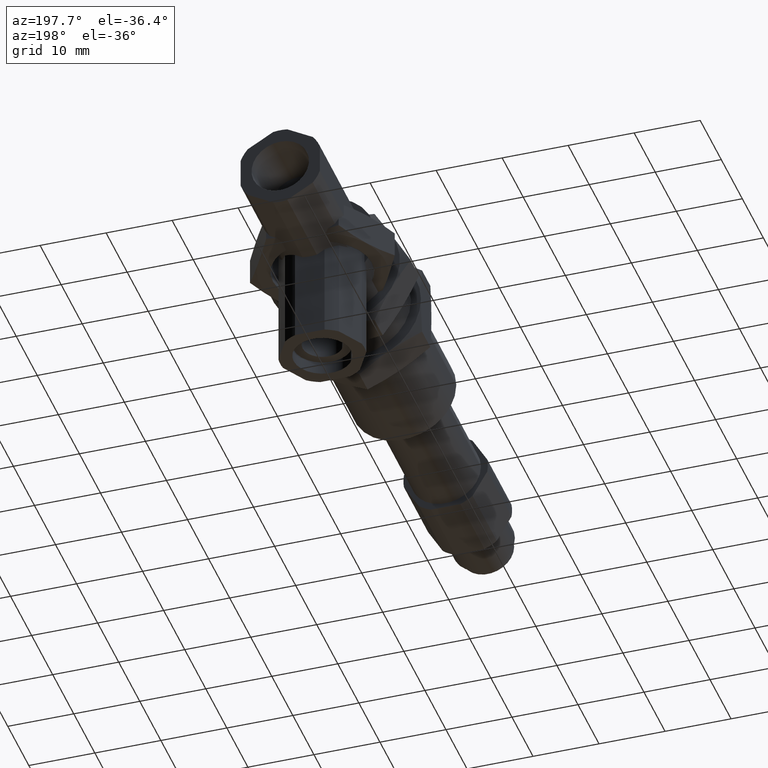
[diagram: clean part render]
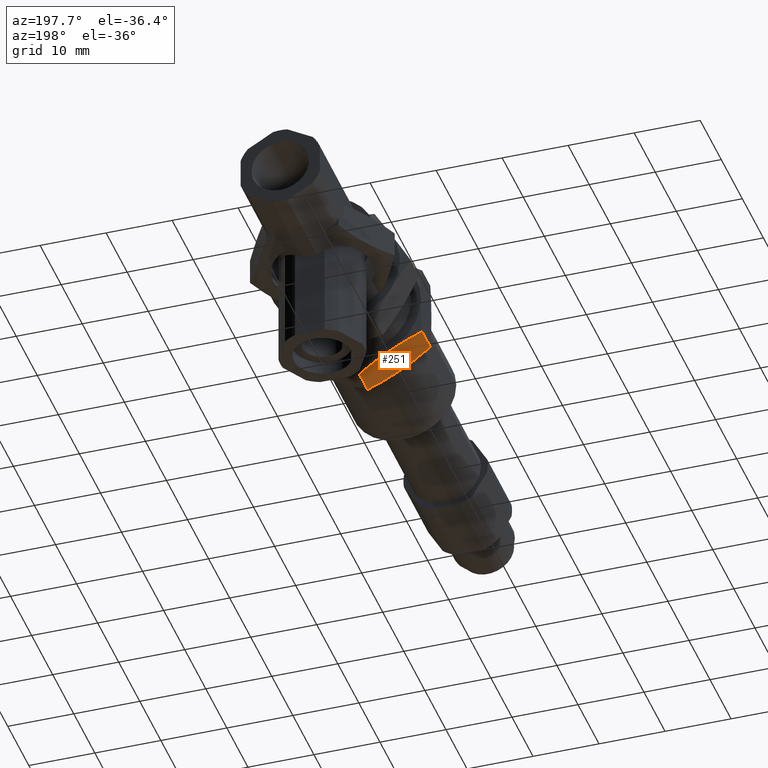
[diagram: same view with one face highlighted and labeled with its STEP entity id]
A machine part, auxiliary view. The second image highlights one B-rep face of the part: STEP entity #251.
In plain terms, the highlighted planar face has unit normal (-0.5, -0, -0.866).
Its self-contained STEP definition (entity closure, byte-faithful):
#251 = ADVANCED_FACE( 'NONE', ( #371 ), #372, .T. );
#371 = FACE_OUTER_BOUND( '', #528, .T. );
#372 = PLANE( '', #529 );
#528 = EDGE_LOOP( '', ( #731, #732, #733, #734, #735, #736 ) );
#529 = AXIS2_PLACEMENT_3D( '', #737, #738, #739 );
#731 = ORIENTED_EDGE( '', *, *, #1169, .F. );
#732 = ORIENTED_EDGE( '', *, *, #1170, .T. );
#733 = ORIENTED_EDGE( '', *, *, #1171, .F. );
#734 = ORIENTED_EDGE( '', *, *, #1172, .F. );
#735 = ORIENTED_EDGE( '', *, *, #1173, .F. );
#736 = ORIENTED_EDGE( '', *, *, #1174, .F. );
#737 = CARTESIAN_POINT( '', ( -10.9696551146029, -6.06514277632445E-016, -5.00000000000000 ) );
#738 = DIRECTION( '', ( -0.866025403784439, -0.500000000000000, 0.000000000000000 ) );
#739 = DIRECTION( '', ( -0.500000000000000, 0.866025403784439, 0.000000000000000 ) );
#1169 = EDGE_CURVE( 'NONE', #1343, #1325, #1344, .T. );
#1170 = EDGE_CURVE( 'NONE', #1343, #1345, #1346, .T. );
#1171 = EDGE_CURVE( 'NONE', #1306, #1345, #1347, .T. );
#1172 = EDGE_CURVE( 'NONE', #1348, #1306, #1349, .T. );
#1173 = EDGE_CURVE( 'NONE', #1350, #1348, #1351, .T. );
#1174 = EDGE_CURVE( 'NONE', #1325, #1350, #1352, .T. );
#1306 = VERTEX_POINT( 'NONE', #1534 );
#1325 = VERTEX_POINT( 'NONE', #1570 );
#1343 = VERTEX_POINT( 'NONE', #1609 );
#1344 = B_SPLINE_CURVE_WITH_KNOTS( '', 3, ( #1610, #1611, #1612, #1613, #1614, #1615 ), .UNSPECIFIED., .F., .F., ( 4, 2, 4 ), ( 4.42269442734662E-018, 0.00275542477704446, 0.00551084955408892 ), .UNSPECIFIED. );
#1345 = VERTEX_POINT( 'NONE', #1616 );
#1346 = LINE( '', #1617, #1618 );
#1347 = B_SPLINE_CURVE_WITH_KNOTS( '', 3, ( #1619, #1620, #1621, #1622, #1623, #1624 ), .UNSPECIFIED., .F., .F., ( 4, 2, 4 ), ( 4.69772227190848E-018, 0.00275542477704447, 0.00551084955408894 ), .UNSPECIFIED. );
#1348 = VERTEX_POINT( 'NONE', #1625 );
#1349 = B_SPLINE_CURVE_WITH_KNOTS( '', 3, ( #1626, #1627, #1628, #1629, #1630, #1631 ), .UNSPECIFIED., .F., .F., ( 4, 2, 4 ), ( 7.03425027832515E-020, 0.00275542477704447, 0.00551084955408893 ), .UNSPECIFIED. );
#1350 = VERTEX_POINT( 'NONE', #1632 );
#1351 = LINE( '', #1633, #1634 );
#1352 = B_SPLINE_CURVE_WITH_KNOTS( '', 3, ( #1635, #1636, #1637, #1638, #1639, #1640 ), .UNSPECIFIED., .F., .F., ( 4, 2, 4 ), ( 4.75073589413134E-018, 0.00275542477704446, 0.00551084955408892 ), .UNSPECIFIED. );
#1534 = CARTESIAN_POINT( '', ( -8.22724133595217, -4.75000000000000, -2.88072765632978E-016 ) );
#1570 = CARTESIAN_POINT( '', ( -8.22724133595217, -4.75000000000000, -5.00000000000000 ) );
#1609 = CARTESIAN_POINT( '', ( -5.48482755730144, -9.50000000000000, -4.46508928364747 ) );
#1610 = CARTESIAN_POINT( '', ( -5.48482755730145, -9.50000000000000, -4.46508928364747 ) );
#1611 = CARTESIAN_POINT( '', ( -5.93819731315566, -8.71474054824541, -4.63010237989494 ) );
#1612 = CARTESIAN_POINT( '', ( -6.39303784117226, -7.92693364437923, -4.76495368861374 ) );
#1613 = CARTESIAN_POINT( '', ( -7.30683714963364, -6.34418681420280, -4.95020144763976 ) );
#1614 = CARTESIAN_POINT( '', ( -7.76582508523563, -5.54919638967900, -5.00000000000000 ) );
#1615 = CARTESIAN_POINT( '', ( -8.22724133595218, -4.75000000000000, -5.00000000000000 ) );
#1616 = CARTESIAN_POINT( '', ( -5.48482755730144, -9.50000000000000, -0.534910716352532 ) );
#1617 = CARTESIAN_POINT( '', ( -5.48482755730144, -9.50000000000000, -5.00000000000000 ) );
#1618 = VECTOR( '', #1952, 1000.00000000000 );
#1619 = CARTESIAN_POINT( '', ( -8.22724133595218, -4.75000000000000, -4.30325845103470E-016 ) );
#1620 = CARTESIAN_POINT( '', ( -7.76582508523563, -5.54919638967900, -2.66815378385105E-016 ) );
#1621 = CARTESIAN_POINT( '', ( -7.30683714963364, -6.34418681420280, -0.0497985523602343 ) );
#1622 = CARTESIAN_POINT( '', ( -6.39303784117225, -7.92693364437923, -0.235046311386265 ) );
#1623 = CARTESIAN_POINT( '', ( -5.93819731315566, -8.71474054824541, -0.369897620105071 ) );
#1624 = CARTESIAN_POINT( '', ( -5.48482755730145, -9.50000000000000, -0.534910716352539 ) );
#1625 = CARTESIAN_POINT( '', ( -10.9696551146029, -7.01196339553050E-016, -0.534910716352538 ) );
#1626 = CARTESIAN_POINT( '', ( -10.9696551146029, -7.95878401473656E-016, -0.534910716352538 ) );
#1627 = CARTESIAN_POINT( '', ( -10.5162853587487, -0.785259451754591, -0.369897620105070 ) );
#1628 = CARTESIAN_POINT( '', ( -10.0614448307321, -1.57306635562078, -0.235046311386263 ) );
#1629 = CARTESIAN_POINT( '', ( -9.14764552227071, -3.15581318579721, -0.0497985523602327 ) );
#1630 = CARTESIAN_POINT( '', ( -8.68865758666873, -3.95080361032100, -5.60735811082347E-016 ) );
#1631 = CARTESIAN_POINT( '', ( -8.22724133595218, -4.75000000000000, -3.95105541474776E-016 ) );
#1632 = CARTESIAN_POINT( '', ( -10.9696551146029, -9.65830915639788E-016, -4.46508928364747 ) );
#1633 = CARTESIAN_POINT( '', ( -10.9696551146029, -6.06514277632445E-016, -5.00000000000000 ) );
#1634 = VECTOR( '', #1953, 1000.00000000000 );
#1635 = CARTESIAN_POINT( '', ( -8.22724133595218, -4.75000000000000, -5.00000000000000 ) );
#1636 = CARTESIAN_POINT( '', ( -8.68865758666873, -3.95080361032100, -5.00000000000000 ) );
#1637 = CARTESIAN_POINT( '', ( -9.14764552227072, -3.15581318579720, -4.95020144763976 ) );
#1638 = CARTESIAN_POINT( '', ( -10.0614448307321, -1.57306635562077, -4.76495368861374 ) );
#1639 = CARTESIAN_POINT( '', ( -10.5162853587487, -0.785259451754590, -4.63010237989494 ) );
#1640 = CARTESIAN_POINT( '', ( -10.9696551146029, -2.40415232348864E-016, -4.46508928364747 ) );
#1952 = DIRECTION( '', ( 0.000000000000000, 0.000000000000000, 1.00000000000000 ) );
#1953 = DIRECTION( '', ( 0.000000000000000, 0.000000000000000, 1.00000000000000 ) );